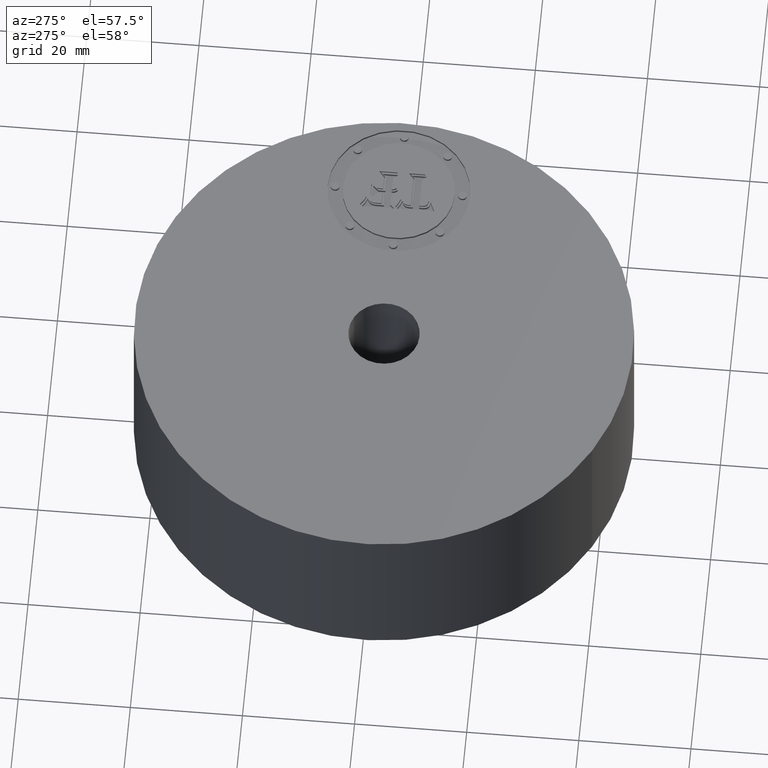
[diagram: clean part render]
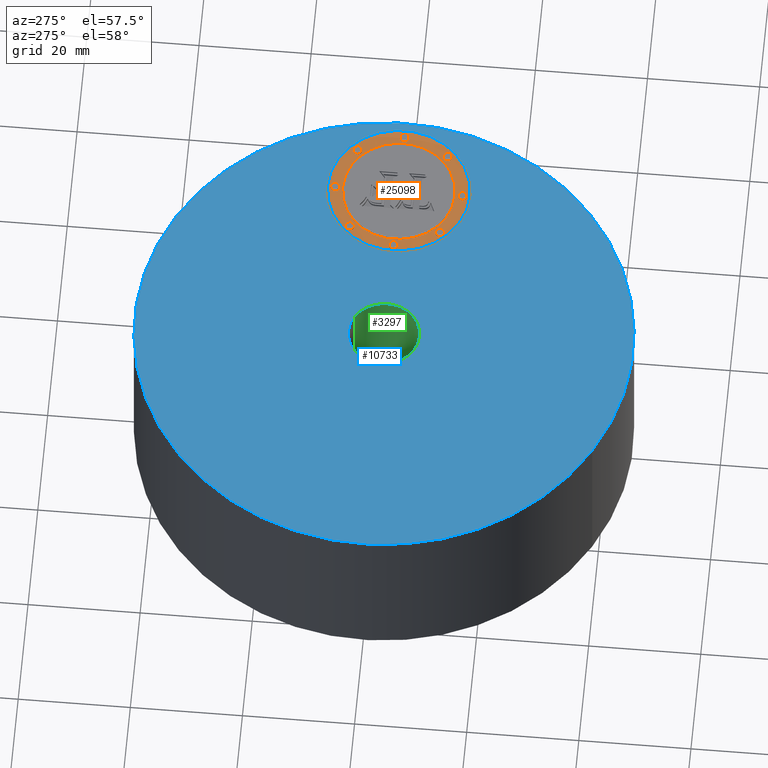
[diagram: same view with three faces highlighted in distinct colors, each labeled with its STEP entity id]
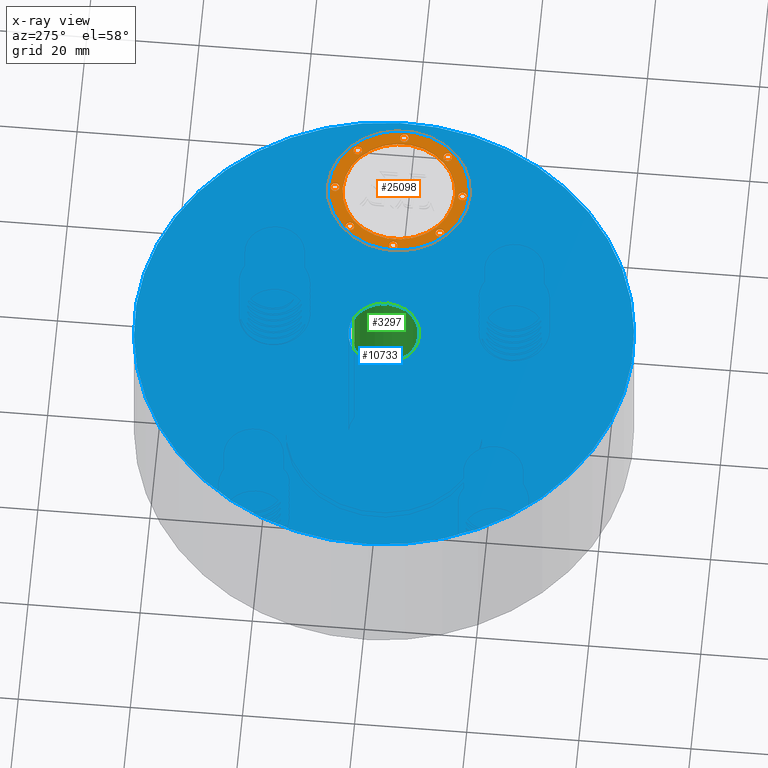
[diagram: x-ray of the same camera — body ghosted, the three highlighted faces saturated]
A machine part, auxiliary view with three faces highlighted in distinct colors.
The next image is the same camera in x-ray (body ghosted, the three faces saturated) — at least one of them is partly hidden behind the body in this view.
Their STEP definitions:

[orange] entity #25098 — the highlighted planar face has unit normal (0, 0, 1).
#13745=AXIS2_PLACEMENT_3D('Plane Axis2P3D',#13742,#13743,#13744) ;
#24896=AXIS2_PLACEMENT_3D('Circle Axis2P3D',#24894,#24895,$) ;
#24915=AXIS2_PLACEMENT_3D('Circle Axis2P3D',#24913,#24914,$) ;
#24938=AXIS2_PLACEMENT_3D('Circle Axis2P3D',#24936,#24937,$) ;
#24947=AXIS2_PLACEMENT_3D('Circle Axis2P3D',#24945,#24946,$) ;
#24956=AXIS2_PLACEMENT_3D('Circle Axis2P3D',#24954,#24955,$) ;
#24965=AXIS2_PLACEMENT_3D('Circle Axis2P3D',#24963,#24964,$) ;
#24974=AXIS2_PLACEMENT_3D('Circle Axis2P3D',#24972,#24973,$) ;
#24983=AXIS2_PLACEMENT_3D('Circle Axis2P3D',#24981,#24982,$) ;
#24992=AXIS2_PLACEMENT_3D('Circle Axis2P3D',#24990,#24991,$) ;
#25001=AXIS2_PLACEMENT_3D('Circle Axis2P3D',#24999,#25000,$) ;
#25010=AXIS2_PLACEMENT_3D('Circle Axis2P3D',#25008,#25009,$) ;
#25019=AXIS2_PLACEMENT_3D('Circle Axis2P3D',#25017,#25018,$) ;
#25028=AXIS2_PLACEMENT_3D('Circle Axis2P3D',#25026,#25027,$) ;
#25037=AXIS2_PLACEMENT_3D('Circle Axis2P3D',#25035,#25036,$) ;
#25046=AXIS2_PLACEMENT_3D('Circle Axis2P3D',#25044,#25045,$) ;
#25055=AXIS2_PLACEMENT_3D('Circle Axis2P3D',#25053,#25054,$) ;
#25064=AXIS2_PLACEMENT_3D('Circle Axis2P3D',#25062,#25063,$) ;
#25073=AXIS2_PLACEMENT_3D('Circle Axis2P3D',#25071,#25072,$) ;
#25082=AXIS2_PLACEMENT_3D('Circle Axis2P3D',#25080,#25081,$) ;
#25091=AXIS2_PLACEMENT_3D('Circle Axis2P3D',#25089,#25090,$) ;
#13742=CARTESIAN_POINT('Axis2P3D Location',(0.,0.,1.235)) ;
#24884=CARTESIAN_POINT('Vertex',(1.19,0.499999995002,1.235)) ;
#24891=CARTESIAN_POINT('Vertex',(1.19,-0.499999995002,1.235)) ;
#24894=CARTESIAN_POINT('Axis2P3D Location',(1.19,0.,1.235)) ;
#24913=CARTESIAN_POINT('Axis2P3D Location',(1.19,0.,1.235)) ;
#24936=CARTESIAN_POINT('Axis2P3D Location',(1.19,0.,1.235)) ;
#24940=CARTESIAN_POINT('Vertex',(1.19,-0.393939390002,1.235)) ;
#24942=CARTESIAN_POINT('Vertex',(1.19,0.393939390002,1.235)) ;
#24945=CARTESIAN_POINT('Axis2P3D Location',(1.19,0.,1.235)) ;
#24954=CARTESIAN_POINT('Axis2P3D Location',(0.743030307503,-1.27155105343E-015,1.235)) ;
#24958=CARTESIAN_POINT('Vertex',(0.743030307503,-0.0303030300001,1.235)) ;
#24960=CARTESIAN_POINT('Vertex',(0.743030307503,0.0303030300001,1.235)) ;
#24963=CARTESIAN_POINT('Axis2P3D Location',(0.743030307503,-1.27155105343E-015,1.235)) ;
#24972=CARTESIAN_POINT('Axis2P3D Location',(1.19,0.446969692502,1.235)) ;
#24976=CARTESIAN_POINT('Vertex',(1.19,0.416666662502,1.235)) ;
#24978=CARTESIAN_POINT('Vertex',(1.19,0.477272722502,1.235)) ;
#24981=CARTESIAN_POINT('Axis2P3D Location',(1.19,0.446969692502,1.235)) ;
#24990=CARTESIAN_POINT('Axis2P3D Location',(0.873944699452,0.316055300553,1.235)) ;
#24994=CARTESIAN_POINT('Vertex',(0.873944699452,0.285752270553,1.235)) ;
#24996=CARTESIAN_POINT('Vertex',(0.873944699452,0.346358330553,1.235)) ;
#24999=CARTESIAN_POINT('Axis2P3D Location',(0.873944699452,0.316055300553,1.235)) ;
#25008=CARTESIAN_POINT('Axis2P3D Location',(1.63696969251,1.17265263816E-014,1.235)) ;
#25012=CARTESIAN_POINT('Vertex',(1.63696969251,-0.0303030300001,1.235)) ;
#25014=CARTESIAN_POINT('Vertex',(1.63696969251,0.0303030300001,1.235)) ;
#25017=CARTESIAN_POINT('Axis2P3D Location',(1.63696969251,1.17265263816E-014,1.235)) ;
#25026=CARTESIAN_POINT('Axis2P3D Location',(1.50605530056,0.316055300553,1.235)) ;
#25030=CARTESIAN_POINT('Vertex',(1.50605530056,0.285752270553,1.235)) ;
#25032=CARTESIAN_POINT('Vertex',(1.50605530056,0.346358330553,1.235)) ;
#25035=CARTESIAN_POINT('Axis2P3D Location',(1.50605530056,0.316055300553,1.235)) ;
#25044=CARTESIAN_POINT('Axis2P3D Location',(1.19,-0.446969692502,1.235)) ;
#25048=CARTESIAN_POINT('Vertex',(1.19,-0.416666662502,1.235)) ;
#25050=CARTESIAN_POINT('Vertex',(1.19,-0.477272722502,1.235)) ;
#25053=CARTESIAN_POINT('Axis2P3D Location',(1.19,-0.446969692502,1.235)) ;
#25062=CARTESIAN_POINT('Axis2P3D Location',(0.873944699452,-0.316055300553,1.235)) ;
#25066=CARTESIAN_POINT('Vertex',(0.873944699452,-0.285752270553,1.235)) ;
#25068=CARTESIAN_POINT('Vertex',(0.873944699452,-0.346358330553,1.235)) ;
#25071=CARTESIAN_POINT('Axis2P3D Location',(0.873944699452,-0.316055300553,1.235)) ;
#25080=CARTESIAN_POINT('Axis2P3D Location',(1.50605530056,-0.316055300553,1.235)) ;
#25084=CARTESIAN_POINT('Vertex',(1.50605530056,-0.285752270553,1.235)) ;
#25086=CARTESIAN_POINT('Vertex',(1.50605530056,-0.346358330553,1.235)) ;
#25089=CARTESIAN_POINT('Axis2P3D Location',(1.50605530056,-0.316055300553,1.235)) ;
#13743=DIRECTION('Axis2P3D Direction',(0.,0.,0.0393700787402)) ;
#13744=DIRECTION('Axis2P3D XDirection',(0.0393700787402,0.,0.)) ;
#24895=DIRECTION('Axis2P3D Direction',(0.,0.,0.0393700787402)) ;
#24914=DIRECTION('Axis2P3D Direction',(0.,0.,0.0393700787402)) ;
#24937=DIRECTION('Axis2P3D Direction',(0.,0.,0.0393700787402)) ;
#24946=DIRECTION('Axis2P3D Direction',(0.,0.,0.0393700787402)) ;
#24955=DIRECTION('Axis2P3D Direction',(0.,0.,0.0393700787402)) ;
#24964=DIRECTION('Axis2P3D Direction',(0.,0.,0.0393700787402)) ;
#24973=DIRECTION('Axis2P3D Direction',(0.,0.,0.0393700787402)) ;
#24982=DIRECTION('Axis2P3D Direction',(0.,0.,0.0393700787402)) ;
#24991=DIRECTION('Axis2P3D Direction',(0.,0.,0.0393700787402)) ;
#25000=DIRECTION('Axis2P3D Direction',(0.,0.,0.0393700787402)) ;
#25009=DIRECTION('Axis2P3D Direction',(0.,0.,0.0393700787402)) ;
#25018=DIRECTION('Axis2P3D Direction',(0.,0.,0.0393700787402)) ;
#25027=DIRECTION('Axis2P3D Direction',(0.,0.,0.0393700787402)) ;
#25036=DIRECTION('Axis2P3D Direction',(0.,0.,0.0393700787402)) ;
#25045=DIRECTION('Axis2P3D Direction',(0.,0.,0.0393700787402)) ;
#25054=DIRECTION('Axis2P3D Direction',(0.,0.,0.0393700787402)) ;
#25063=DIRECTION('Axis2P3D Direction',(0.,0.,0.0393700787402)) ;
#25072=DIRECTION('Axis2P3D Direction',(0.,0.,0.0393700787402)) ;
#25081=DIRECTION('Axis2P3D Direction',(0.,0.,0.0393700787402)) ;
#25090=DIRECTION('Axis2P3D Direction',(0.,0.,0.0393700787402)) ;
#24933=ORIENTED_EDGE('',*,*,#24898,.T.) ;
#24934=ORIENTED_EDGE('',*,*,#24917,.T.) ;
#24951=ORIENTED_EDGE('',*,*,#24944,.F.) ;
#24952=ORIENTED_EDGE('',*,*,#24949,.F.) ;
#24969=ORIENTED_EDGE('',*,*,#24962,.F.) ;
#24970=ORIENTED_EDGE('',*,*,#24967,.F.) ;
#24987=ORIENTED_EDGE('',*,*,#24980,.F.) ;
#24988=ORIENTED_EDGE('',*,*,#24985,.F.) ;
#25005=ORIENTED_EDGE('',*,*,#24998,.F.) ;
#25006=ORIENTED_EDGE('',*,*,#25003,.F.) ;
#25023=ORIENTED_EDGE('',*,*,#25016,.F.) ;
#25024=ORIENTED_EDGE('',*,*,#25021,.F.) ;
#25041=ORIENTED_EDGE('',*,*,#25034,.F.) ;
#25042=ORIENTED_EDGE('',*,*,#25039,.F.) ;
#25059=ORIENTED_EDGE('',*,*,#25052,.F.) ;
#25060=ORIENTED_EDGE('',*,*,#25057,.F.) ;
#25077=ORIENTED_EDGE('',*,*,#25070,.F.) ;
#25078=ORIENTED_EDGE('',*,*,#25075,.F.) ;
#25095=ORIENTED_EDGE('',*,*,#25088,.F.) ;
#25096=ORIENTED_EDGE('',*,*,#25093,.F.) ;
#24953=FACE_BOUND('',#24950,.T.) ;
#24971=FACE_BOUND('',#24968,.T.) ;
#24989=FACE_BOUND('',#24986,.T.) ;
#25007=FACE_BOUND('',#25004,.T.) ;
#25025=FACE_BOUND('',#25022,.T.) ;
#25043=FACE_BOUND('',#25040,.T.) ;
#25061=FACE_BOUND('',#25058,.T.) ;
#25079=FACE_BOUND('',#25076,.T.) ;
#25097=FACE_BOUND('',#25094,.T.) ;
#25098=ADVANCED_FACE('PartBody',(#24935,#24953,#24971,#24989,#25007,#25025,#25043,#25061,#25079,#25097),#13746,.T.) ;
#24897=CIRCLE('generated circle',#24896,0.499999995002) ;
#24916=CIRCLE('generated circle',#24915,0.499999995002) ;
#24939=CIRCLE('generated circle',#24938,0.393939390002) ;
#24948=CIRCLE('generated circle',#24947,0.393939390002) ;
#24957=CIRCLE('generated circle',#24956,0.0303030300001) ;
#24966=CIRCLE('generated circle',#24965,0.0303030300001) ;
#24975=CIRCLE('generated circle',#24974,0.0303030300001) ;
#24984=CIRCLE('generated circle',#24983,0.0303030300001) ;
#24993=CIRCLE('generated circle',#24992,0.0303030300001) ;
#25002=CIRCLE('generated circle',#25001,0.0303030300001) ;
#25011=CIRCLE('generated circle',#25010,0.0303030300001) ;
#25020=CIRCLE('generated circle',#25019,0.0303030300001) ;
#25029=CIRCLE('generated circle',#25028,0.0303030300001) ;
#25038=CIRCLE('generated circle',#25037,0.0303030300001) ;
#25047=CIRCLE('generated circle',#25046,0.0303030300001) ;
#25056=CIRCLE('generated circle',#25055,0.0303030300001) ;
#25065=CIRCLE('generated circle',#25064,0.0303030300001) ;
#25074=CIRCLE('generated circle',#25073,0.0303030300001) ;
#25083=CIRCLE('generated circle',#25082,0.0303030300001) ;
#25092=CIRCLE('generated circle',#25091,0.0303030300001) ;
#24898=EDGE_CURVE('',#24885,#24892,#24897,.T.) ;
#24917=EDGE_CURVE('',#24892,#24885,#24916,.T.) ;
#24944=EDGE_CURVE('',#24941,#24943,#24939,.T.) ;
#24949=EDGE_CURVE('',#24943,#24941,#24948,.T.) ;
#24962=EDGE_CURVE('',#24959,#24961,#24957,.T.) ;
#24967=EDGE_CURVE('',#24961,#24959,#24966,.T.) ;
#24980=EDGE_CURVE('',#24977,#24979,#24975,.T.) ;
#24985=EDGE_CURVE('',#24979,#24977,#24984,.T.) ;
#24998=EDGE_CURVE('',#24995,#24997,#24993,.T.) ;
#25003=EDGE_CURVE('',#24997,#24995,#25002,.T.) ;
#25016=EDGE_CURVE('',#25013,#25015,#25011,.T.) ;
#25021=EDGE_CURVE('',#25015,#25013,#25020,.T.) ;
#25034=EDGE_CURVE('',#25031,#25033,#25029,.T.) ;
#25039=EDGE_CURVE('',#25033,#25031,#25038,.T.) ;
#25052=EDGE_CURVE('',#25049,#25051,#25047,.T.) ;
#25057=EDGE_CURVE('',#25051,#25049,#25056,.T.) ;
#25070=EDGE_CURVE('',#25067,#25069,#25065,.T.) ;
#25075=EDGE_CURVE('',#25069,#25067,#25074,.T.) ;
#25088=EDGE_CURVE('',#25085,#25087,#25083,.T.) ;
#25093=EDGE_CURVE('',#25087,#25085,#25092,.T.) ;
#24932=EDGE_LOOP('',(#24933,#24934)) ;
#24950=EDGE_LOOP('',(#24951,#24952)) ;
#24968=EDGE_LOOP('',(#24969,#24970)) ;
#24986=EDGE_LOOP('',(#24987,#24988)) ;
#25004=EDGE_LOOP('',(#25005,#25006)) ;
#25022=EDGE_LOOP('',(#25023,#25024)) ;
#25040=EDGE_LOOP('',(#25041,#25042)) ;
#25058=EDGE_LOOP('',(#25059,#25060)) ;
#25076=EDGE_LOOP('',(#25077,#25078)) ;
#25094=EDGE_LOOP('',(#25095,#25096)) ;
#24935=FACE_OUTER_BOUND('',#24932,.T.) ;
#13746=PLANE('',#13745) ;
#24885=VERTEX_POINT('',#24884) ;
#24892=VERTEX_POINT('',#24891) ;
#24941=VERTEX_POINT('',#24940) ;
#24943=VERTEX_POINT('',#24942) ;
#24959=VERTEX_POINT('',#24958) ;
#24961=VERTEX_POINT('',#24960) ;
#24977=VERTEX_POINT('',#24976) ;
#24979=VERTEX_POINT('',#24978) ;
#24995=VERTEX_POINT('',#24994) ;
#24997=VERTEX_POINT('',#24996) ;
#25013=VERTEX_POINT('',#25012) ;
#25015=VERTEX_POINT('',#25014) ;
#25031=VERTEX_POINT('',#25030) ;
#25033=VERTEX_POINT('',#25032) ;
#25049=VERTEX_POINT('',#25048) ;
#25051=VERTEX_POINT('',#25050) ;
#25067=VERTEX_POINT('',#25066) ;
#25069=VERTEX_POINT('',#25068) ;
#25085=VERTEX_POINT('',#25084) ;
#25087=VERTEX_POINT('',#25086) ;

[blue] entity #10733 — the highlighted planar face has unit normal (0, 0, -1).
#2762=AXIS2_PLACEMENT_3D('Circle Axis2P3D',#2760,#2761,$) ;
#2781=AXIS2_PLACEMENT_3D('Circle Axis2P3D',#2779,#2780,$) ;
#3274=AXIS2_PLACEMENT_3D('Circle Axis2P3D',#3272,#3273,$) ;
#3300=AXIS2_PLACEMENT_3D('Circle Axis2P3D',#3298,#3299,$) ;
#10705=AXIS2_PLACEMENT_3D('Plane Axis2P3D',#10702,#10703,#10704) ;
#10717=AXIS2_PLACEMENT_3D('Circle Axis2P3D',#10715,#10716,$) ;
#10726=AXIS2_PLACEMENT_3D('Circle Axis2P3D',#10724,#10725,$) ;
#2757=CARTESIAN_POINT('Vertex',(-0.838994692561,-1.53576948331,1.25)) ;
#2760=CARTESIAN_POINT('Axis2P3D Location',(0.,0.,1.25)) ;
#2764=CARTESIAN_POINT('Vertex',(0.838994692561,1.53576948331,1.25)) ;
#2779=CARTESIAN_POINT('Axis2P3D Location',(0.,0.,1.25)) ;
#3272=CARTESIAN_POINT('Axis2P3D Location',(0.,0.,1.25000000001)) ;
#3276=CARTESIAN_POINT('Vertex',(0.119856384652,0.219395640473,1.25000000001)) ;
#3278=CARTESIAN_POINT('Vertex',(-0.119856384652,-0.219395640473,1.25000000001)) ;
#3298=CARTESIAN_POINT('Axis2P3D Location',(0.,0.,1.25000000001)) ;
#10702=CARTESIAN_POINT('Axis2P3D Location',(0.,0.250000000001,1.25000000001)) ;
#10715=CARTESIAN_POINT('Axis2P3D Location',(1.19,0.,1.25000000001)) ;
#10719=CARTESIAN_POINT('Vertex',(1.19,-0.499999995002,1.25000000001)) ;
#10721=CARTESIAN_POINT('Vertex',(1.19,0.499999995002,1.25000000001)) ;
#10724=CARTESIAN_POINT('Axis2P3D Location',(1.19,0.,1.25000000001)) ;
#2761=DIRECTION('Axis2P3D Direction',(0.,0.,-0.0393700787402)) ;
#2780=DIRECTION('Axis2P3D Direction',(0.,0.,-0.0393700787402)) ;
#3273=DIRECTION('Axis2P3D Direction',(0.,0.,-0.0393700787402)) ;
#3299=DIRECTION('Axis2P3D Direction',(0.,0.,-0.0393700787402)) ;
#10703=DIRECTION('Axis2P3D Direction',(0.,0.,-0.0393700787402)) ;
#10704=DIRECTION('Axis2P3D XDirection',(0.0393700787402,0.,0.)) ;
#10716=DIRECTION('Axis2P3D Direction',(0.,0.,-0.0393700787402)) ;
#10725=DIRECTION('Axis2P3D Direction',(0.,0.,-0.0393700787402)) ;
#10708=ORIENTED_EDGE('',*,*,#2783,.F.) ;
#10709=ORIENTED_EDGE('',*,*,#2766,.F.) ;
#10712=ORIENTED_EDGE('',*,*,#3302,.T.) ;
#10713=ORIENTED_EDGE('',*,*,#3280,.T.) ;
#10730=ORIENTED_EDGE('',*,*,#10723,.F.) ;
#10731=ORIENTED_EDGE('',*,*,#10728,.F.) ;
#10714=FACE_BOUND('',#10711,.T.) ;
#10732=FACE_BOUND('',#10729,.T.) ;
#10733=ADVANCED_FACE('PartBody',(#10710,#10714,#10732),#10706,.F.) ;
#2763=CIRCLE('generated circle',#2762,1.75000000001) ;
#2782=CIRCLE('generated circle',#2781,1.75000000001) ;
#3275=CIRCLE('generated circle',#3274,0.250000000001) ;
#3301=CIRCLE('generated circle',#3300,0.250000000001) ;
#10718=CIRCLE('generated circle',#10717,0.499999995002) ;
#10727=CIRCLE('generated circle',#10726,0.499999995002) ;
#2766=EDGE_CURVE('',#2758,#2765,#2763,.T.) ;
#2783=EDGE_CURVE('',#2765,#2758,#2782,.T.) ;
#3280=EDGE_CURVE('',#3277,#3279,#3275,.T.) ;
#3302=EDGE_CURVE('',#3279,#3277,#3301,.T.) ;
#10723=EDGE_CURVE('',#10720,#10722,#10718,.F.) ;
#10728=EDGE_CURVE('',#10722,#10720,#10727,.F.) ;
#10707=EDGE_LOOP('',(#10708,#10709)) ;
#10711=EDGE_LOOP('',(#10712,#10713)) ;
#10729=EDGE_LOOP('',(#10730,#10731)) ;
#10710=FACE_OUTER_BOUND('',#10707,.T.) ;
#10706=PLANE('',#10705) ;
#2758=VERTEX_POINT('',#2757) ;
#2765=VERTEX_POINT('',#2764) ;
#3277=VERTEX_POINT('',#3276) ;
#3279=VERTEX_POINT('',#3278) ;
#10720=VERTEX_POINT('',#10719) ;
#10722=VERTEX_POINT('',#10721) ;

[green] entity #3297 — the highlighted cylindrical surface (edge-blend (fillet) strip) has radius 6.35 mm, axis along (0, 0, -1).
#3250=AXIS2_PLACEMENT_3D('Circle Axis2P3D',#3248,#3249,$) ;
#3270=AXIS2_PLACEMENT_3D('Cylinder Axis2P3D',#3267,#3268,#3269) ;
#3274=AXIS2_PLACEMENT_3D('Circle Axis2P3D',#3272,#3273,$) ;
#3248=CARTESIAN_POINT('Axis2P3D Location',(0.,0.,-0.0625000000003)) ;
#3252=CARTESIAN_POINT('Vertex',(0.119856384652,0.219395640473,-0.0625000000003)) ;
#3254=CARTESIAN_POINT('Vertex',(-0.119856384652,-0.219395640473,-0.0625000000003)) ;
#3267=CARTESIAN_POINT('Axis2P3D Location',(0.,0.,0.593750000002)) ;
#3272=CARTESIAN_POINT('Axis2P3D Location',(0.,0.,1.25000000001)) ;
#3276=CARTESIAN_POINT('Vertex',(0.119856384652,0.219395640473,1.25000000001)) ;
#3278=CARTESIAN_POINT('Vertex',(-0.119856384652,-0.219395640473,1.25000000001)) ;
#3281=CARTESIAN_POINT('Line Origine',(0.119856384652,0.219395640473,0.593750000002)) ;
#3286=CARTESIAN_POINT('Line Origine',(-0.119856384652,-0.219395640473,0.593750000002)) ;
#3249=DIRECTION('Axis2P3D Direction',(0.,0.,-0.0393700787402)) ;
#3268=DIRECTION('Axis2P3D Direction',(0.,0.,-0.0393700787402)) ;
#3269=DIRECTION('Axis2P3D XDirection',(-0.0188750212049,-0.0345504945626,0.)) ;
#3273=DIRECTION('Axis2P3D Direction',(0.,0.,-0.0393700787402)) ;
#3282=DIRECTION('Vector Direction',(0.,0.,-0.0393700787402)) ;
#3287=DIRECTION('Vector Direction',(0.,0.,-0.0393700787402)) ;
#3283=VECTOR('Line Direction',#3282,0.0393700787402) ;
#3288=VECTOR('Line Direction',#3287,0.0393700787402) ;
#3292=ORIENTED_EDGE('',*,*,#3280,.F.) ;
#3293=ORIENTED_EDGE('',*,*,#3285,.T.) ;
#3294=ORIENTED_EDGE('',*,*,#3256,.T.) ;
#3295=ORIENTED_EDGE('',*,*,#3290,.F.) ;
#3297=ADVANCED_FACE('PartBody',(#3296),#3271,.F.) ;
#3251=CIRCLE('generated circle',#3250,0.250000000001) ;
#3275=CIRCLE('generated circle',#3274,0.250000000001) ;
#3271=CYLINDRICAL_SURFACE('generated cylinder',#3270,0.250000000001) ;
#3256=EDGE_CURVE('',#3253,#3255,#3251,.T.) ;
#3280=EDGE_CURVE('',#3277,#3279,#3275,.T.) ;
#3285=EDGE_CURVE('',#3277,#3253,#3284,.T.) ;
#3290=EDGE_CURVE('',#3279,#3255,#3289,.T.) ;
#3291=EDGE_LOOP('',(#3292,#3293,#3294,#3295)) ;
#3296=FACE_OUTER_BOUND('',#3291,.T.) ;
#3284=LINE('Line',#3281,#3283) ;
#3289=LINE('Line',#3286,#3288) ;
#3253=VERTEX_POINT('',#3252) ;
#3255=VERTEX_POINT('',#3254) ;
#3277=VERTEX_POINT('',#3276) ;
#3279=VERTEX_POINT('',#3278) ;